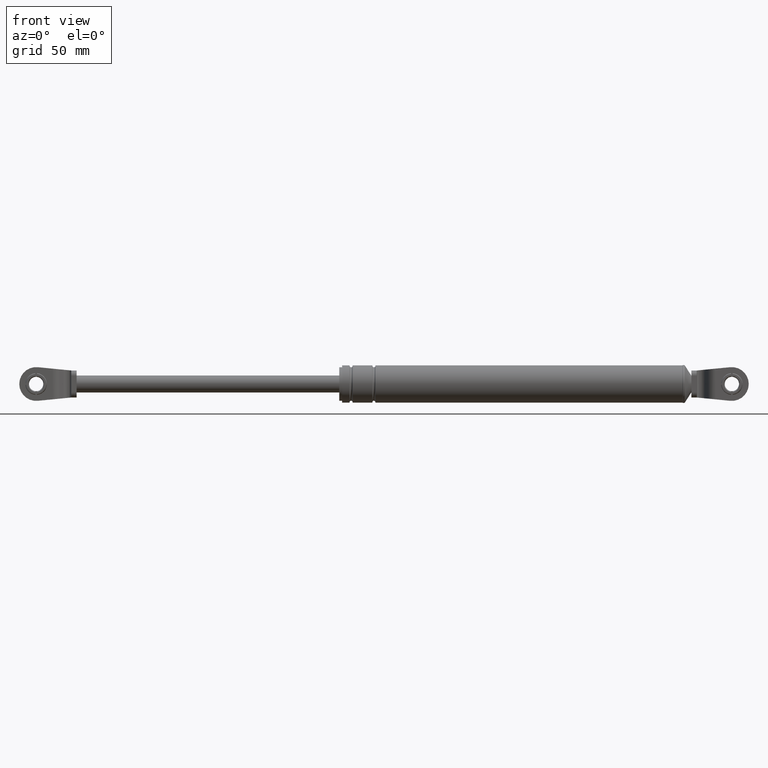
[diagram: clean part render]
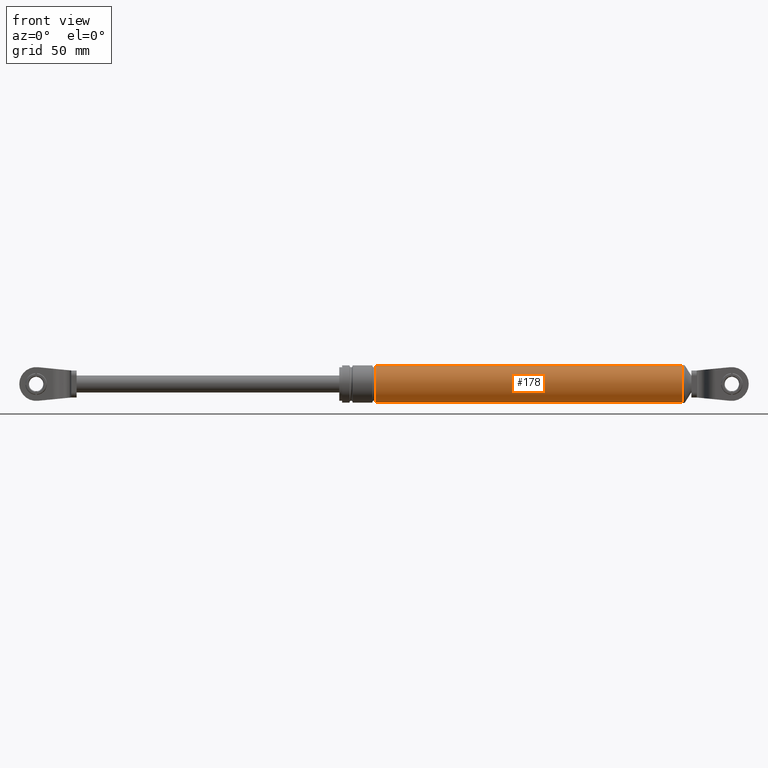
[diagram: same view with one face highlighted and labeled with its STEP entity id]
A machine part, front view. The second image highlights one B-rep face of the part: STEP entity #178.
In plain terms, the highlighted cylindrical surface (edge-blend (fillet) strip) has radius 11 mm, axis along (1, 0, 0).
Its self-contained STEP definition (entity closure, byte-faithful):
#178=ADVANCED_FACE('',(#935),#934,.T.);
#934=CYLINDRICAL_SURFACE('',#2202,1.10000000000E+001);
#935=FACE_OUTER_BOUND('',#2203,.T.);
#2199=CARTESIAN_POINT('',(0.00000000000E+000,0.00000000000E+000,1.88977754832E+002));
#2200=DIRECTION('',(1.00000000000E+000,-0.00000000000E+000,-0.00000000000E+000));
#2201=DIRECTION('',(-0.00000000000E+000,-0.00000000000E+000,-1.00000000000E+000));
#2202=AXIS2_PLACEMENT_3D('',#2199,#2200,#2201);
#2203=EDGE_LOOP('',(#3118,#3119,#3120,#3121));
#3118=ORIENTED_EDGE('',*,*,#3607,.F.);
#3119=ORIENTED_EDGE('',*,*,#3728,.T.);
#3120=ORIENTED_EDGE('',*,*,#3725,.T.);
#3121=ORIENTED_EDGE('',*,*,#3729,.F.);
#3607=EDGE_CURVE('',#4325,#4324,#4332,.T.);
#3725=EDGE_CURVE('',#5115,#5108,#5116,.T.);
#3728=EDGE_CURVE('',#4325,#5115,#5134,.T.);
#3729=EDGE_CURVE('',#4324,#5108,#5140,.T.);
#4324=VERTEX_POINT('',#6671);
#4325=VERTEX_POINT('',#6672);
#4332=CIRCLE('',#6680,1.10000000000E+001);
#5108=VERTEX_POINT('',#7166);
#5115=VERTEX_POINT('',#7169);
#5116=CIRCLE('',#7173,1.10000000000E+001);
#5134=(BOUNDED_CURVE() B_SPLINE_CURVE(1,(#7180,#7181),.UNSPECIFIED.,.F.,.F.) B_SPLINE_CURVE_WITH_KNOTS((2,2),(4.95063109323E-002,9.50493688730E-001),.UNSPECIFIED.) CURVE() GEOMETRIC_REPRESENTATION_ITEM() RATIONAL_B_SPLINE_CURVE((1.00000000000E+000,1.00000000000E+000)) REPRESENTATION_ITEM('') );
#5140=(BOUNDED_CURVE() B_SPLINE_CURVE(1,(#7182,#7183),.UNSPECIFIED.,.F.,.F.) B_SPLINE_CURVE_WITH_KNOTS((2,2),(4.95063111094E-002,9.50493688891E-001),.UNSPECIFIED.) CURVE() GEOMETRIC_REPRESENTATION_ITEM() RATIONAL_B_SPLINE_CURVE((7.50000000000E-001,7.50000000000E-001)) REPRESENTATION_ITEM('') );
#6671=CARTESIAN_POINT('',(2.08960362798E+002,0.00000000000E+000,1.99977754832E+002));
#6672=CARTESIAN_POINT('',(2.08960362798E+002,5.92118946467E-016,1.77977754832E+002));
#6677=CARTESIAN_POINT('',(2.08960362798E+002,0.00000000000E+000,1.88977754832E+002));
#6678=DIRECTION('',(-1.00000000000E+000,0.00000000000E+000,0.00000000000E+000));
#6679=DIRECTION('',(0.00000000000E+000,-1.22460635382E-016,1.00000000000E+000));
#6680=AXIS2_PLACEMENT_3D('',#6677,#6678,#6679);
#7166=CARTESIAN_POINT('',(3.90954811100E+002,0.00000000000E+000,1.99977754832E+002));
#7169=CARTESIAN_POINT('',(3.90954811100E+002,5.92118946467E-016,1.77977754832E+002));
#7170=CARTESIAN_POINT('',(3.90954811100E+002,0.00000000000E+000,1.88977754832E+002));
#7171=DIRECTION('',(-1.00000000000E+000,0.00000000000E+000,0.00000000000E+000));
#7172=DIRECTION('',(0.00000000000E+000,-1.22460635382E-016,1.00000000000E+000));
#7173=AXIS2_PLACEMENT_3D('',#7170,#7171,#7172);
#7180=CARTESIAN_POINT('',(2.08960362762E+002,0.00000000000E+000,1.77977754832E+002));
#7181=CARTESIAN_POINT('',(3.90954811068E+002,0.00000000000E+000,1.77977754832E+002));
#7182=CARTESIAN_POINT('',(2.08960362798E+002,0.00000000000E+000,1.99977754832E+002));
#7183=CARTESIAN_POINT('',(3.90954811100E+002,0.00000000000E+000,1.99977754832E+002));